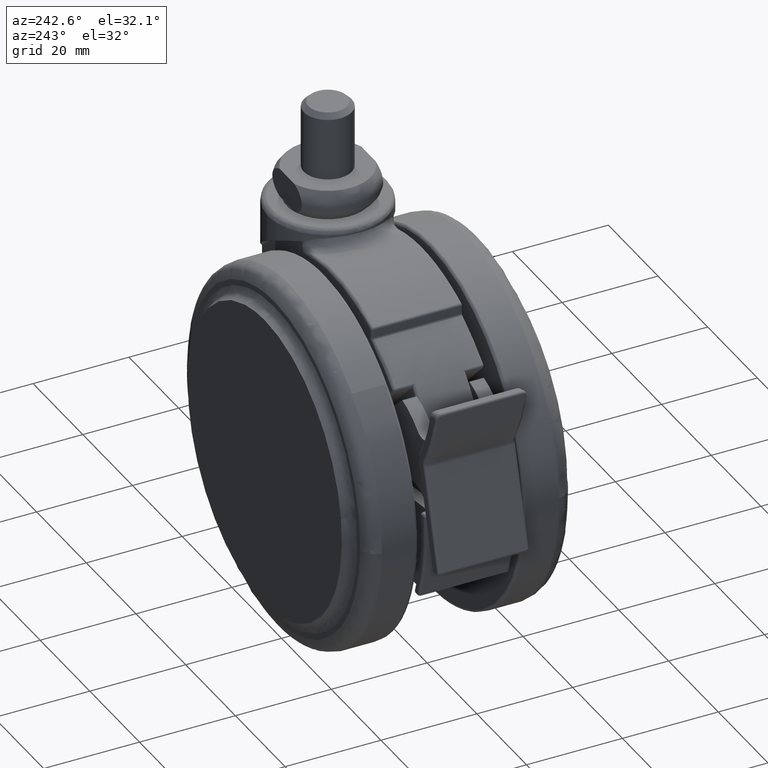
[diagram: clean part render]
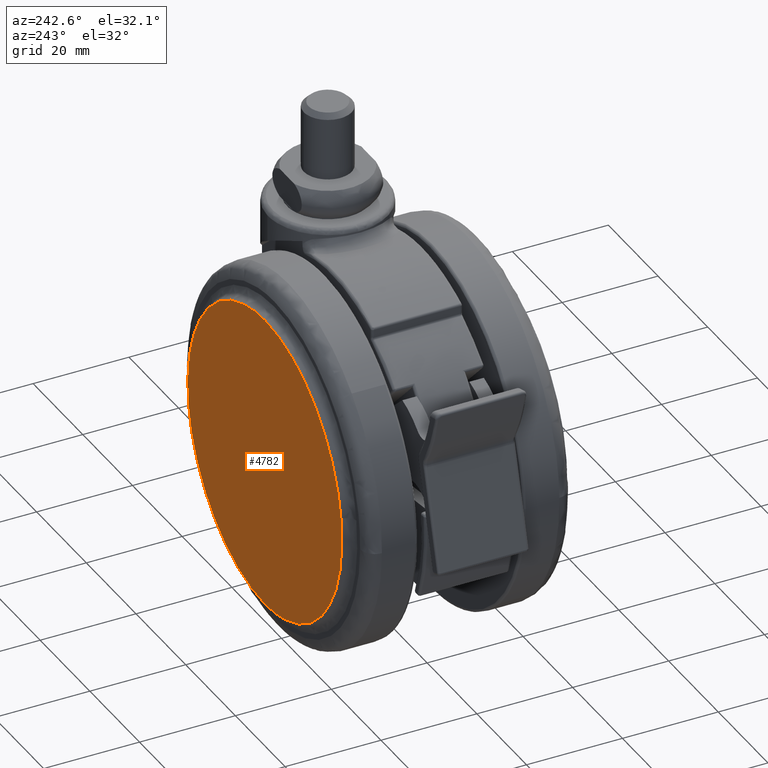
[diagram: same view with one face highlighted and labeled with its STEP entity id]
A machine part, auxiliary view. The second image highlights one B-rep face of the part: STEP entity #4782.
In plain terms, the highlighted face is a freeform B-spline surface patch.
Its self-contained STEP definition (entity closure, byte-faithful):
#4642=CARTESIAN_POINT('',(-50.648204086947374,23.499999999138350,-35.843006737228443));
#4643=VERTEX_POINT('',#4642);
#4657=CARTESIAN_POINT('',(-20.0,23.500000000000021,-71.500000000000185));
#4658=VERTEX_POINT('',#4657);
#4659=CARTESIAN_POINT('',(-50.648204086947381,23.499999999138357,-35.843006737228428));
#4660=CARTESIAN_POINT('',(-51.000000000072170,23.499999999166324,-38.158215786094836));
#4661=CARTESIAN_POINT('',(-51.000000000069363,23.499999999198870,-40.499999999989477));
#4662=CARTESIAN_POINT('',(-51.000000000032060,23.499999999629708,-71.499999999995239));
#4663=CARTESIAN_POINT('',(-20.0,23.500000000000021,-71.500000000000185));
#4671=(BOUNDED_CURVE()B_SPLINE_CURVE(2,(#4659,#4660,#4661,#4662,#4663),.UNSPECIFIED.,.F.,.U.)B_SPLINE_CURVE_WITH_KNOTS((3,2,3),(0.724102415376443,0.750000000000000,1.0),.UNSPECIFIED.)CURVE()GEOMETRIC_REPRESENTATION_ITEM()RATIONAL_B_SPLINE_CURVE((0.945604234434395,0.969659092320451,1.0,0.707106781186548,1.0))REPRESENTATION_ITEM(''));
#4672=EDGE_CURVE('',#4643,#4658,#4671,.T.);
#4674=CARTESIAN_POINT('',(10.648204086947370,23.499999999138360,-45.156993262771557));
#4675=VERTEX_POINT('',#4674);
#4676=CARTESIAN_POINT('',(-20.0,23.500000000000021,-71.500000000000185));
#4677=CARTESIAN_POINT('',(6.645385372037358,23.499999999569194,-71.500000000005755));
#4678=CARTESIAN_POINT('',(10.648204086947372,23.499999999138357,-45.156993262771564));
#4686=(BOUNDED_CURVE()B_SPLINE_CURVE(2,(#4676,#4677,#4678),.UNSPECIFIED.,.F.,.U.)B_SPLINE_CURVE_WITH_KNOTS((3,3),(0.0,0.224102415376443),.UNSPECIFIED.)CURVE()GEOMETRIC_REPRESENTATION_ITEM()RATIONAL_B_SPLINE_CURVE((1.0,0.737447688866097,0.945604234434395))REPRESENTATION_ITEM(''));
#4687=EDGE_CURVE('',#4658,#4675,#4686,.T.);
#4736=CARTESIAN_POINT('',(-20.0,23.500000000000000,-9.500000000000002));
#4737=VERTEX_POINT('',#4736);
#4738=CARTESIAN_POINT('',(10.648204086947372,23.499999999138357,-45.156993262771564));
#4739=CARTESIAN_POINT('',(11.000000000072161,23.499999999166334,-42.841784213905179));
#4740=CARTESIAN_POINT('',(11.000000000069340,23.499999999198870,-40.500000000010537));
#4741=CARTESIAN_POINT('',(11.000000000032053,23.499999999629690,-9.500000000004876));
#4742=CARTESIAN_POINT('',(-20.0,23.500000000000000,-9.500000000000002));
#4750=(BOUNDED_CURVE()B_SPLINE_CURVE(2,(#4738,#4739,#4740,#4741,#4742),.UNSPECIFIED.,.F.,.U.)B_SPLINE_CURVE_WITH_KNOTS((3,2,3),(0.224102415376443,0.250000000000000,0.500000000000000),.UNSPECIFIED.)CURVE()GEOMETRIC_REPRESENTATION_ITEM()RATIONAL_B_SPLINE_CURVE((0.945604234434395,0.969659092320451,1.0,0.707106781186548,1.0))REPRESENTATION_ITEM(''));
#4751=EDGE_CURVE('',#4675,#4737,#4750,.T.);
#4753=CARTESIAN_POINT('',(-20.0,23.500000000000000,-9.500000000000002));
#4754=CARTESIAN_POINT('',(-46.645385372037346,23.499999999569180,-9.499999999994335));
#4755=CARTESIAN_POINT('',(-50.648204086947381,23.499999999138357,-35.843006737228428));
#4763=(BOUNDED_CURVE()B_SPLINE_CURVE(2,(#4753,#4754,#4755),.UNSPECIFIED.,.F.,.U.)B_SPLINE_CURVE_WITH_KNOTS((3,3),(0.500000000000000,0.724102415376443),.UNSPECIFIED.)CURVE()GEOMETRIC_REPRESENTATION_ITEM()RATIONAL_B_SPLINE_CURVE((1.0,0.737447688866097,0.945604234434395))REPRESENTATION_ITEM(''));
#4764=EDGE_CURVE('',#4737,#4643,#4763,.T.);
#4771=CARTESIAN_POINT('',(14.089121109995141,23.500000000000000,-6.403100120168022));
#4772=CARTESIAN_POINT('',(14.089121109995141,23.500000000000000,-74.596901542801746));
#4773=CARTESIAN_POINT('',(-54.089121664191858,23.500000000000000,-6.403100120168022));
#4774=CARTESIAN_POINT('',(-54.089121664191858,23.500000000000000,-74.596901542801746));
#4775=B_SPLINE_SURFACE_WITH_KNOTS('',1,1,((#4771,#4773),(#4772,#4774)),.UNSPECIFIED.,.F.,.F.,.U.,(2,2),(2,2),(0.0,68.193801422633726),(0.0,68.178242774186998),.UNSPECIFIED.);
#4776=ORIENTED_EDGE('',*,*,#4672,.F.);
#4777=ORIENTED_EDGE('',*,*,#4764,.F.);
#4778=ORIENTED_EDGE('',*,*,#4751,.F.);
#4779=ORIENTED_EDGE('',*,*,#4687,.F.);
#4780=EDGE_LOOP('',(#4776,#4777,#4778,#4779));
#4781=FACE_OUTER_BOUND('',#4780,.T.);
#4782=ADVANCED_FACE('',(#4781),#4775,.T.);